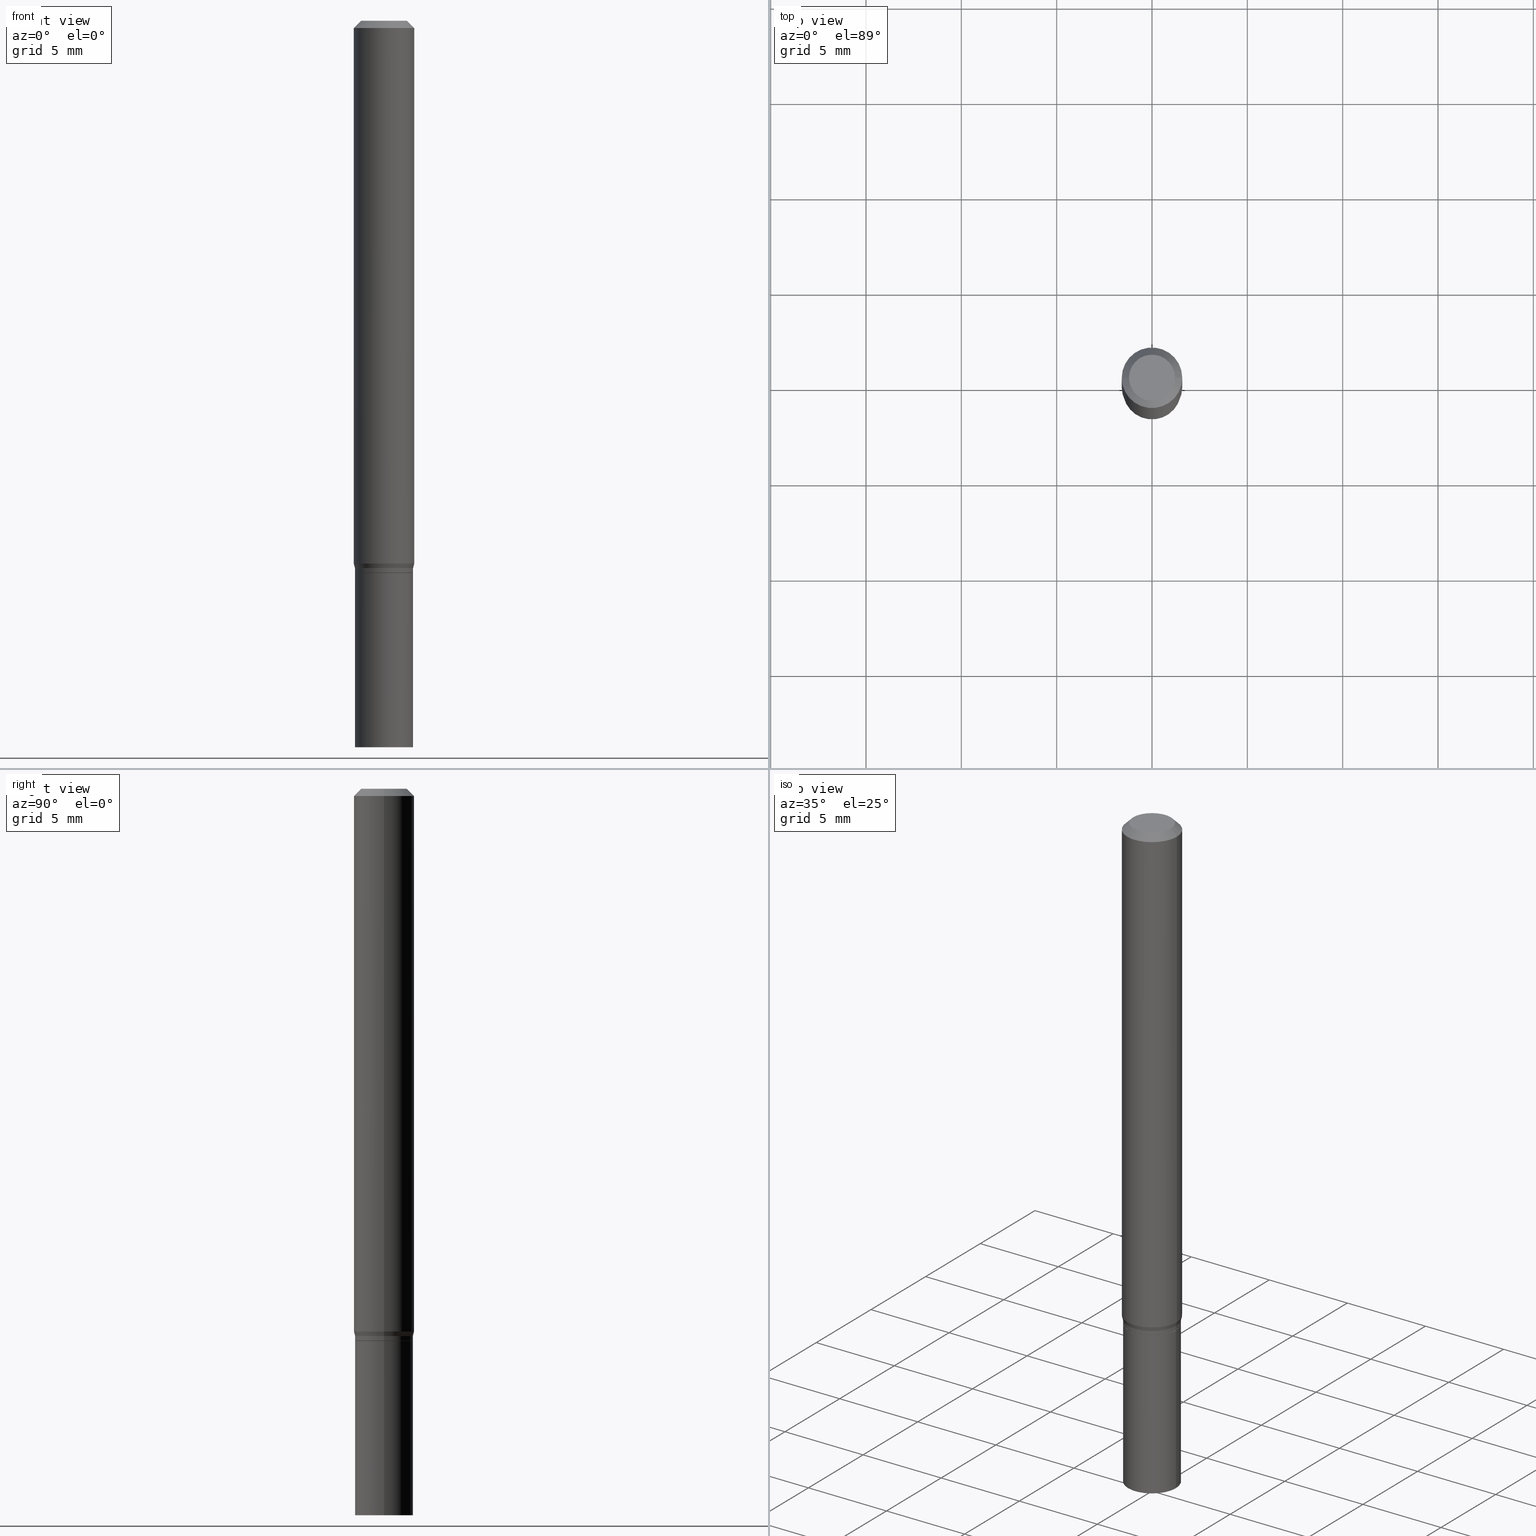
[diagram: canonical four-view strip — front | top / right | iso, engineering-drawing reading convention]
A machine part, canonical four-view strip (front | top / right | iso — engineering-drawing reading convention). The complete STEP part file that produces these views, byte-faithful:
ISO-10303-21;
HEADER;
FILE_DESCRIPTION (( 'STEP AP203' ),
    '1' );
FILE_NAME ('02469.STEP',
    '2024-03-18T20:47:08',
    ( '' ),
    ( '' ),
    'SwSTEP 2.0',
    'SolidWorks 2023',
    '' );
FILE_SCHEMA (( 'CONFIG_CONTROL_DESIGN' ));
ENDSEC;

DATA;
#1 = LINE ( 'NONE', #50, #366 ) ;
#2 = AXIS2_PLACEMENT_3D ( 'NONE', #41, #395, #220 ) ;
#3 = EDGE_CURVE ( 'NONE', #417, #411, #206, .T. ) ;
#4 = LOCAL_TIME ( 16, 47, 8.000000000000000000, #424 ) ;
#5 = DIRECTION ( 'NONE',  ( 2.445468806185136597E-29, -3.491481338843145583E-15, -1.000000000000000000 ) ) ;
#6 = PLANE ( 'NONE',  #10 ) ;
#7 = EDGE_CURVE ( 'NONE', #270, #13, #360, .T. ) ;
#8 = CARTESIAN_POINT ( 'NONE',  ( 0.05999999999999999778, -4.189777606611760421E-16, 2.925706065477561756E-30 ) ) ;
#9 = CARTESIAN_POINT ( 'NONE',  ( 2.763379750989204444E-29, -3.945373912892755049E-15, -1.130000000000000115 ) ) ;
#10 = AXIS2_PLACEMENT_3D ( 'NONE', #48, #357, #363 ) ;
#11 = CALENDAR_DATE ( 2024, 18, 3 ) ;
#12 = CARTESIAN_POINT ( 'NONE',  ( 0.06000000000000020595, -4.364351673553932471E-15, -1.130000000000000115 ) ) ;
#13 = VERTEX_POINT ( 'NONE', #383 ) ;
#14 = EDGE_CURVE ( 'NONE', #411, #417, #350, .T. ) ;
#15 = DIRECTION ( 'NONE',  ( -2.445468806185136597E-29, 3.491481338843145583E-15, 1.000000000000000000 ) ) ;
#16 = EDGE_LOOP ( 'NONE', ( #408, #374 ) ) ;
#17 = COORDINATED_UNIVERSAL_TIME_OFFSET ( 5, 0, .BEHIND. ) ;
#18 = PRODUCT ( '02469', '02469', '', ( #464 ) ) ;
#19 = EDGE_CURVE ( 'NONE', #270, #121, #167, .T. ) ;
#20 = VERTEX_POINT ( 'NONE', #271 ) ;
#21 = EDGE_CURVE ( 'NONE', #164, #240, #238, .T. ) ;
#22 = ORIENTED_EDGE ( 'NONE', *, *, #209, .T. ) ;
#23 = CIRCLE ( 'NONE', #175, 0.06000000000000020595 ) ;
#24 = CIRCLE ( 'NONE', #76, 0.06250000000000000000 ) ;
#25 = PLANE ( 'NONE',  #436 ) ;
#26 = ORIENTED_EDGE ( 'NONE', *, *, #106, .F. ) ;
#27 = EDGE_LOOP ( 'NONE', ( #123, #154, #340, #98 ) ) ;
#28 = LINE ( 'NONE', #319, #373 ) ;
#29 = ORIENTED_EDGE ( 'NONE', *, *, #100, .F. ) ;
#30 = CARTESIAN_POINT ( 'NONE',  ( 0.000000000000000000, 0.000000000000000000, 0.000000000000000000 ) ) ;
#31 = ORIENTED_EDGE ( 'NONE', *, *, #380, .T. ) ;
#32 = COORDINATED_UNIVERSAL_TIME_OFFSET ( 5, 0, .BEHIND. ) ;
#33 = ORIENTED_EDGE ( 'NONE', *, *, #3, .T. ) ;
#34 = EDGE_LOOP ( 'NONE', ( #447, #172, #197, #295 ) ) ;
#35 = FACE_OUTER_BOUND ( 'NONE', #163, .T. ) ;
#36 = DIRECTION ( 'NONE',  ( 1.000000000000000000, -6.982962677686268288E-15, 0.000000000000000000 ) ) ;
#37 = EDGE_CURVE ( 'NONE', #229, #309, #459, .T. ) ;
#38 = DIRECTION ( 'NONE',  ( 1.000000000000000000, -6.982962677686259611E-15, 0.000000000000000000 ) ) ;
#39 = APPLICATION_CONTEXT ( 'configuration controlled 3d designs of mechanical parts and assemblies' ) ;
#40 = DIRECTION ( 'NONE',  ( 1.000000000000000000, -6.982962677686268288E-15, 0.000000000000000000 ) ) ;
#41 = CARTESIAN_POINT ( 'NONE',  ( 0.000000000000000000, 0.000000000000000000, 0.000000000000000000 ) ) ;
#42 = CARTESIAN_POINT ( 'NONE',  ( -0.06250000000000000000, -3.468708738667092242E-15, -1.120669872981078674 ) ) ;
#43 = VECTOR ( 'NONE', #208, 39.37007874015748143 ) ;
#44 = ADVANCED_FACE ( 'NONE', ( #192 ), #428, .T. ) ;
#45 = FACE_OUTER_BOUND ( 'NONE', #406, .T. ) ;
#46 = CYLINDRICAL_SURFACE ( 'NONE', #2, 0.06000000000000012962 ) ;
#47 = DIRECTION ( 'NONE',  ( 1.000000000000000000, -6.982962677686267499E-15, 4.852736867747366768E-29 ) ) ;
#48 = CARTESIAN_POINT ( 'NONE',  ( 3.576687321579069994E-29, -5.368277968210015545E-15, -1.500000000000000222 ) ) ;
#49 = VECTOR ( 'NONE', #442, 39.37007874015748143 ) ;
#50 = CARTESIAN_POINT ( 'NONE',  ( -0.05999999999999999778, 4.263256414560600957E-16, -2.951361054152943413E-30 ) ) ;
#51 = EDGE_CURVE ( 'NONE', #13, #270, #311, .T. ) ;
#52 = ORIENTED_EDGE ( 'NONE', *, *, #160, .F. ) ;
#53 = CARTESIAN_POINT ( 'NONE',  ( 2.787834439051055989E-29, -3.980288726281186698E-15, -1.140000000000000124 ) ) ;
#54 = EDGE_CURVE ( 'NONE', #265, #241, #23, .T. ) ;
#55 = CLOSED_SHELL ( 'NONE', ( #314, #334, #187, #181, #261, #413, #44, #434, #171, #219, #96, #318 ) ) ;
#56 = ORIENTED_EDGE ( 'NONE', *, *, #347, .T. ) ;
#57 = COORDINATED_UNIVERSAL_TIME_OFFSET ( 5, 0, .BEHIND. ) ;
#58 = ORIENTED_EDGE ( 'NONE', *, *, #119, .T. ) ;
#59 = APPROVAL_DATE_TIME ( #277, #420 ) ;
#60 = ORIENTED_EDGE ( 'NONE', *, *, #253, .T. ) ;
#61 = APPROVAL_DATE_TIME ( #376, #300 ) ;
#62 = DIRECTION ( 'NONE',  ( -2.445468806185136597E-29, 3.491481338843145583E-15, 1.000000000000000000 ) ) ;
#63 = UNCERTAINTY_MEASURE_WITH_UNIT (LENGTH_MEASURE( 1.000000000000000082E-05 ), #278, 'distance_accuracy_value', 'NONE');
#64 = CYLINDRICAL_SURFACE ( 'NONE', #94, 0.06250000000000000000 ) ;
#65 = AXIS2_PLACEMENT_3D ( 'NONE', #293, #152, #286 ) ;
#66 = CARTESIAN_POINT ( 'NONE',  ( 0.06250000000000000000, -4.364351673553916694E-16, 3.047610484872459871E-30 ) ) ;
#67 = CARTESIAN_POINT ( 'NONE',  ( 0.06000000000000012962, -4.189777606611768802E-16, 2.925706065477567711E-30 ) ) ;
#68 = CC_DESIGN_PERSON_AND_ORGANIZATION_ASSIGNMENT ( #91, #427, ( #195 ) ) ;
#69 = CARTESIAN_POINT ( 'NONE',  ( 3.668203209277704895E-29, -5.237222008264718177E-15, -1.500000000000000222 ) ) ;
#70 = DIRECTION ( 'NONE',  ( 1.000000000000000000, -6.982962677686266711E-15, 4.876176775795935793E-29 ) ) ;
#71 = CARTESIAN_POINT ( 'NONE',  ( -0.05999999999999999778, -4.182429725816891947E-15, -1.500000000000000222 ) ) ;
#72 = CARTESIAN_POINT ( 'NONE',  ( 0.04749999999999999362, -4.035134999187581581E-16, -1.989643822619502098E-16 ) ) ;
#73 = APPROVAL ( #299, 'UNSPECIFIED' ) ;
#74 = APPROVAL_DATE_TIME ( #77, #73 ) ;
#75 = ORIENTED_EDGE ( 'NONE', *, *, #199, .T. ) ;
#76 = AXIS2_PLACEMENT_3D ( 'NONE', #392, #323, #212 ) ;
#77 = DATE_AND_TIME ( #104, #87 ) ;
#78 =( NAMED_UNIT ( * ) SI_UNIT ( $, .STERADIAN. ) SOLID_ANGLE_UNIT ( ) );
#79 = EDGE_CURVE ( 'NONE', #417, #267, #1, .T. ) ;
#80 = LINE ( 'NONE', #85, #409 ) ;
#81 = AXIS2_PLACEMENT_3D ( 'NONE', #257, #287, #224 ) ;
#82 = CC_DESIGN_APPROVAL ( #420, ( #351 ) ) ;
#83 = EDGE_CURVE ( 'NONE', #229, #240, #441, .T. ) ;
#84 = DATE_TIME_ROLE ( 'creation_date' ) ;
#85 = CARTESIAN_POINT ( 'NONE',  ( -0.06000000000000012962, 4.263256414560610325E-16, -2.951361054152949719E-30 ) ) ;
#86 = FACE_OUTER_BOUND ( 'NONE', #16, .T. ) ;
#87 = LOCAL_TIME ( 16, 47, 8.000000000000000000, #57 ) ;
#88 = FACE_OUTER_BOUND ( 'NONE', #416, .T. ) ;
#89 = ADVANCED_FACE ( 'NONE', ( #88 ), #412, .F. ) ;
#90 = EDGE_LOOP ( 'NONE', ( #348, #33, #456, #232 ) ) ;
#91 = PERSON_AND_ORGANIZATION ( #377, #327 ) ;
#92 = EDGE_LOOP ( 'NONE', ( #375, #268, #308, #26 ) ) ;
#93 = AXIS2_PLACEMENT_3D ( 'NONE', #423, #109, #107 ) ;
#94 = AXIS2_PLACEMENT_3D ( 'NONE', #30, #139, #70 ) ;
#95 = EDGE_LOOP ( 'NONE', ( #155, #177, #56, #173 ) ) ;
#96 = ADVANCED_FACE ( 'NONE', ( #445 ), #150, .T. ) ;
#97 = PERSON_AND_ORGANIZATION ( #377, #327 ) ;
#98 = ORIENTED_EDGE ( 'NONE', *, *, #21, .F. ) ;
#99 = ORIENTED_EDGE ( 'NONE', *, *, #19, .T. ) ;
#100 = EDGE_CURVE ( 'NONE', #241, #164, #368, .T. ) ;
#101 = CARTESIAN_POINT ( 'NONE',  ( 3.316907271900976096E-16, 0.04749999999999999362, -2.653275547260257586E-16 ) ) ;
#102 = CIRCLE ( 'NONE', #81, 0.06000000000000006023 ) ;
#103 = AXIS2_PLACEMENT_3D ( 'NONE', #191, #432, #183 ) ;
#104 = CALENDAR_DATE ( 2024, 18, 3 ) ;
#105 = ORIENTED_EDGE ( 'NONE', *, *, #21, .T. ) ;
#106 = EDGE_CURVE ( 'NONE', #346, #164, #297, .T. ) ;
#107 = DIRECTION ( 'NONE',  ( 1.000000000000000000, -6.982962677686268288E-15, 0.000000000000000000 ) ) ;
#108 = ORIENTED_EDGE ( 'NONE', *, *, #106, .T. ) ;
#109 = DIRECTION ( 'NONE',  ( -2.445468806185136597E-29, 3.491481338843145583E-15, 1.000000000000000000 ) ) ;
#110 = CARTESIAN_POINT ( 'NONE',  ( 0.000000000000000000, 0.000000000000000000, 0.000000000000000000 ) ) ;
#111 = CIRCLE ( 'NONE', #166, 0.06000000000000020595 ) ;
#112 = APPROVAL_PERSON_ORGANIZATION ( #367, #300, #312 ) ;
#113 = DIRECTION ( 'NONE',  ( 1.000000000000000000, -6.982962677686265922E-15, 4.876176775795935793E-29 ) ) ;
#114 = CARTESIAN_POINT ( 'NONE',  ( 0.06000000000000006023, -4.397520746272941039E-15, -1.139500000000000179 ) ) ;
#115 = CARTESIAN_POINT ( 'NONE',  ( -0.06250000000000000000, -1.538495874449838155E-15, -0.01499999999999999944 ) ) ;
#116 = AXIS2_PLACEMENT_3D ( 'NONE', #262, #15, #404 ) ;
#117 = APPROVAL_PERSON_ORGANIZATION ( #161, #73, #125 ) ;
#118 = CARTESIAN_POINT ( 'NONE',  ( 2.787834439051055989E-29, -3.980288726281186698E-15, -1.140000000000000124 ) ) ;
#119 = EDGE_CURVE ( 'NONE', #265, #346, #354, .T. ) ;
#120 = DIRECTION ( 'NONE',  ( 0.7071067811865522357, -7.319954787623271823E-15, -0.7071067811865427988 ) ) ;
#121 = VERTEX_POINT ( 'NONE', #382 ) ;
#122 = CIRCLE ( 'NONE', #93, 0.05999999999999999778 ) ;
#123 = ORIENTED_EDGE ( 'NONE', *, *, #393, .T. ) ;
#124 = CALENDAR_DATE ( 2024, 18, 3 ) ;
#125 = APPROVAL_ROLE ( '' ) ;
#126 = EDGE_CURVE ( 'NONE', #260, #241, #384, .T. ) ;
#127 = CIRCLE ( 'NONE', #403, 0.06250000000000000000 ) ;
#128 = ORIENTED_EDGE ( 'NONE', *, *, #328, .T. ) ;
#129 = CC_DESIGN_DATE_AND_TIME_ASSIGNMENT ( #298, #345, ( #351 ) ) ;
#130 = DIRECTION ( 'NONE',  ( -0.7071067811865656694, 7.493145998870420424E-15, 0.7071067811865294761 ) ) ;
#131 = DIRECTION ( 'NONE',  ( -2.445468806185136877E-29, 3.491481338843145188E-15, 1.000000000000000000 ) ) ;
#132 = APPLICATION_PROTOCOL_DEFINITION ( 'international standard', 'config_control_design', 1994, #39 ) ;
#133 = CARTESIAN_POINT ( 'NONE',  ( -0.05949999999999999734, -3.557515798503927106E-15, -1.140000000000000124 ) ) ;
#134 = AXIS2_PLACEMENT_3D ( 'NONE', #378, #62, #204 ) ;
#135 = DIRECTION ( 'NONE',  ( -2.445468806185136597E-29, 3.491481338843145583E-15, 1.000000000000000000 ) ) ;
#136 = CARTESIAN_POINT ( 'NONE',  ( 2.787834439051055989E-29, -3.980288726281186698E-15, -1.140000000000000124 ) ) ;
#137 = PERSON_AND_ORGANIZATION ( #377, #327 ) ;
#138 = FACE_OUTER_BOUND ( 'NONE', #34, .T. ) ;
#139 = DIRECTION ( 'NONE',  ( -2.445468806185136597E-29, 3.491481338843145583E-15, 1.000000000000000000 ) ) ;
#140 = APPROVAL_ROLE ( '' ) ;
#141 = CYLINDRICAL_SURFACE ( 'NONE', #313, 0.05999999999999999778 ) ;
#142 = PLANE ( 'NONE',  #444 ) ;
#143 = DIRECTION ( 'NONE',  ( -2.445468806185136597E-29, 3.491481338843145583E-15, 1.000000000000000000 ) ) ;
#144 = AXIS2_PLACEMENT_3D ( 'NONE', #256, #275, #422 ) ;
#145 = CARTESIAN_POINT ( 'NONE',  ( 2.763379750989204444E-29, -3.945373912892755049E-15, -1.130000000000000115 ) ) ;
#146 = DIRECTION ( 'NONE',  ( -2.445468806185136597E-29, 3.491481338843145583E-15, 1.000000000000000000 ) ) ;
#147 = FACE_OUTER_BOUND ( 'NONE', #92, .T. ) ;
#148 = DIRECTION ( 'NONE',  ( 1.000000000000000000, -6.982962677686268288E-15, 0.000000000000000000 ) ) ;
#149 = DIRECTION ( 'NONE',  ( 1.000000000000000000, -6.982962677686265922E-15, 4.876176775795935793E-29 ) ) ;
#150 = CONICAL_SURFACE ( 'NONE', #290, 0.05949999999999999734, 0.7853981633974739252 ) ;
#151 = DIRECTION ( 'NONE',  ( 1.000000000000000000, -6.982962677686259611E-15, 0.000000000000000000 ) ) ;
#152 = DIRECTION ( 'NONE',  ( -2.445468806185136597E-29, 3.491481338843145583E-15, 1.000000000000000000 ) ) ;
#153 = DIRECTION ( 'NONE',  ( 0.2588190451025210170, 1.565188264969624531E-15, 0.9659258262890682012 ) ) ;
#154 = ORIENTED_EDGE ( 'NONE', *, *, #160, .T. ) ;
#155 = ORIENTED_EDGE ( 'NONE', *, *, #37, .F. ) ;
#156 = VECTOR ( 'NONE', #130, 39.37007874015748143 ) ;
#157 = CIRCLE ( 'NONE', #144, 0.04749999999999999362 ) ;
#158 = ORIENTED_EDGE ( 'NONE', *, *, #37, .T. ) ;
#159 = PERSON_AND_ORGANIZATION_ROLE ( 'design_supplier' ) ;
#160 = EDGE_CURVE ( 'NONE', #346, #335, #28, .T. ) ;
#161 = PERSON_AND_ORGANIZATION ( #377, #327 ) ;
#162 = ORIENTED_EDGE ( 'NONE', *, *, #380, .F. ) ;
#163 = EDGE_LOOP ( 'NONE', ( #405, #370, #333, #452 ) ) ;
#164 = VERTEX_POINT ( 'NONE', #170 ) ;
#165 = CC_DESIGN_PERSON_AND_ORGANIZATION_ASSIGNMENT ( #352, #302, ( #351 ) ) ;
#166 = AXIS2_PLACEMENT_3D ( 'NONE', #9, #397, #148 ) ;
#167 = LINE ( 'NONE', #133, #156 ) ;
#168 = ADVANCED_FACE ( 'NONE', ( #179 ), #338, .T. ) ;
#169 = ORIENTED_EDGE ( 'NONE', *, *, #19, .F. ) ;
#170 = CARTESIAN_POINT ( 'NONE',  ( 0.06250000000000000000, -4.349233115872546527E-15, -1.120669872981078674 ) ) ;
#171 = ADVANCED_FACE ( 'NONE', ( #460 ), #25, .F. ) ;
#172 = ORIENTED_EDGE ( 'NONE', *, *, #385, .F. ) ;
#173 = ORIENTED_EDGE ( 'NONE', *, *, #242, .F. ) ;
#174 = DIRECTION ( 'NONE',  ( -1.000000000000000000, 6.982962677686266711E-15, 0.000000000000000000 ) ) ;
#175 = AXIS2_PLACEMENT_3D ( 'NONE', #185, #146, #320 ) ;
#176 = LOCAL_TIME ( 16, 47, 8.000000000000000000, #32 ) ;
#177 = ORIENTED_EDGE ( 'NONE', *, *, #83, .T. ) ;
#178 = CARTESIAN_POINT ( 'NONE',  ( 0.05949999999999999734, -4.395775005603518747E-15, -1.140000000000000124 ) ) ;
#179 = FACE_OUTER_BOUND ( 'NONE', #90, .T. ) ;
#180 = CALENDAR_DATE ( 2024, 18, 3 ) ;
#181 = ADVANCED_FACE ( 'NONE', ( #213 ), #64, .T. ) ;
#182 = ORIENTED_EDGE ( 'NONE', *, *, #51, .T. ) ;
#183 = DIRECTION ( 'NONE',  ( 1.000000000000000000, -6.982962677686270655E-15, 0.000000000000000000 ) ) ;
#184 = CARTESIAN_POINT ( 'NONE',  ( -0.06250000000000000000, 3.840629472727444916E-16, -0.01499999999999999944 ) ) ;
#185 = CARTESIAN_POINT ( 'NONE',  ( 2.763379750989204444E-29, -3.945373912892755049E-15, -1.130000000000000115 ) ) ;
#186 = DIRECTION ( 'NONE',  ( -2.445468806185136877E-29, 3.491481338843145188E-15, 1.000000000000000000 ) ) ;
#187 = ADVANCED_FACE ( 'NONE', ( #317 ), #272, .T. ) ;
#188 = AXIS2_PLACEMENT_3D ( 'NONE', #236, #259, #401 ) ;
#189 = PERSON_AND_ORGANIZATION ( #377, #327 ) ;
#190 = DIRECTION ( 'NONE',  ( -2.445468806185136597E-29, 3.491481338843145583E-15, 1.000000000000000000 ) ) ;
#191 = CARTESIAN_POINT ( 'NONE',  ( 2.740563216406686834E-29, -3.912797948517154069E-15, -1.120669872981078674 ) ) ;
#192 = FACE_OUTER_BOUND ( 'NONE', #402, .T. ) ;
#193 = VECTOR ( 'NONE', #120, 39.37007874015748143 ) ;
#194 = CARTESIAN_POINT ( 'NONE',  ( -0.04749999999999999362, 3.578768372314206562E-16, -1.989643822619551895E-16 ) ) ;
#195 = PRODUCT_DEFINITION_FORMATION_WITH_SPECIFIED_SOURCE ( 'ANY', '', #18, .NOT_KNOWN. ) ;
#196 = DIRECTION ( 'NONE',  ( 1.000000000000000000, -6.982962677686259611E-15, 0.000000000000000000 ) ) ;
#197 = ORIENTED_EDGE ( 'NONE', *, *, #242, .T. ) ;
#198 = EDGE_LOOP ( 'NONE', ( #128, #58, #301, #29 ) ) ;
#199 = EDGE_CURVE ( 'NONE', #267, #20, #288, .T. ) ;
#200 = ORIENTED_EDGE ( 'NONE', *, *, #7, .T. ) ;
#201 = AXIS2_PLACEMENT_3D ( 'NONE', #69, #336, #458 ) ;
#202 = ORIENTED_EDGE ( 'NONE', *, *, #379, .T. ) ;
#203 = CALENDAR_DATE ( 2024, 18, 3 ) ;
#204 = DIRECTION ( 'NONE',  ( 1.000000000000000000, -6.982962677686259611E-15, 0.000000000000000000 ) ) ;
#205 = DIRECTION ( 'NONE',  ( -0.7071067811865522357, 2.468850131082306364E-15, -0.7071067811865427988 ) ) ;
#206 = CIRCLE ( 'NONE', #398, 0.05999999999999999778 ) ;
#207 = CC_DESIGN_APPROVAL ( #300, ( #195 ) ) ;
#208 = DIRECTION ( 'NONE',  ( -2.445468806185136877E-29, 3.491481338843145188E-15, 1.000000000000000000 ) ) ;
#209 = EDGE_CURVE ( 'NONE', #20, #267, #122, .T. ) ;
#210 = EDGE_LOOP ( 'NONE', ( #31, #60, #315, #233 ) ) ;
#211 = DIRECTION ( 'NONE',  ( 2.438088387897960049E-29, -3.491481338843145188E-15, -1.000000000000000000 ) ) ;
#212 = DIRECTION ( 'NONE',  ( 1.000000000000000000, -6.982962677686266711E-15, 0.000000000000000000 ) ) ;
#213 = FACE_OUTER_BOUND ( 'NONE', #27, .T. ) ;
#214 = VECTOR ( 'NONE', #343, 39.37007874015748143 ) ;
#215 = APPLICATION_PROTOCOL_DEFINITION ( 'international standard', 'config_control_design', 1994, #440 ) ;
#216 = DIRECTION ( 'NONE',  ( -2.445468806185136597E-29, 3.491481338843145583E-15, 1.000000000000000000 ) ) ;
#217 = CARTESIAN_POINT ( 'NONE',  ( 0.000000000000000000, 0.000000000000000000, 0.000000000000000000 ) ) ;
#218 = CARTESIAN_POINT ( 'NONE',  ( -0.05999999999999999778, -4.182429725816891947E-15, -1.140000000000000124 ) ) ;
#219 = ADVANCED_FACE ( 'NONE', ( #244 ), #142, .F. ) ;
#220 = DIRECTION ( 'NONE',  ( 1.000000000000000000, -6.982962677686265922E-15, 4.876176775795935793E-29 ) ) ;
#221 = VECTOR ( 'NONE', #205, 39.37007874015748143 ) ;
#222 = CONICAL_SURFACE ( 'NONE', #234, 0.06000000000000020595, 0.2617993877991496854 ) ;
#223 = DIRECTION ( 'NONE',  ( 1.000000000000000000, -6.982962677686267499E-15, 4.876176775795936353E-29 ) ) ;
#224 = DIRECTION ( 'NONE',  ( 1.000000000000000000, -6.982962677686269077E-15, 0.000000000000000000 ) ) ;
#225 = CARTESIAN_POINT ( 'NONE',  ( -0.06000000000000020595, -3.493878505051892611E-15, -1.130000000000000115 ) ) ;
#226 = AXIS2_PLACEMENT_3D ( 'NONE', #118, #439, #151 ) ;
#227 = ORIENTED_EDGE ( 'NONE', *, *, #51, .F. ) ;
#228 = ORIENTED_EDGE ( 'NONE', *, *, #126, .T. ) ;
#229 = VERTEX_POINT ( 'NONE', #72 ) ;
#230 = DIRECTION ( 'NONE',  ( -2.445468806185136597E-29, 3.491481338843145583E-15, 1.000000000000000000 ) ) ;
#231 = ORIENTED_EDGE ( 'NONE', *, *, #7, .F. ) ;
#232 = ORIENTED_EDGE ( 'NONE', *, *, #199, .F. ) ;
#233 = ORIENTED_EDGE ( 'NONE', *, *, #126, .F. ) ;
#234 = AXIS2_PLACEMENT_3D ( 'NONE', #431, #386, #40 ) ;
#235 = ORIENTED_EDGE ( 'NONE', *, *, #391, .F. ) ;
#236 = CARTESIAN_POINT ( 'NONE',  ( 4.189777606612038494E-16, 0.05999999999999602179, -1.140000000000000346 ) ) ;
#237 = DIRECTION ( 'NONE',  ( -2.445468806185136597E-29, 3.491481338843145583E-15, 1.000000000000000000 ) ) ;
#238 = LINE ( 'NONE', #66, #43 ) ;
#239 = ORIENTED_EDGE ( 'NONE', *, *, #419, .F. ) ;
#240 = VERTEX_POINT ( 'NONE', #276 ) ;
#241 = VERTEX_POINT ( 'NONE', #246 ) ;
#242 = EDGE_CURVE ( 'NONE', #309, #335, #388, .T. ) ;
#243 = LINE ( 'NONE', #178, #248 ) ;
#244 = FACE_OUTER_BOUND ( 'NONE', #329, .T. ) ;
#245 = EDGE_LOOP ( 'NONE', ( #303, #158 ) ) ;
#246 = CARTESIAN_POINT ( 'NONE',  ( 0.06000000000000020595, -4.364351673553932471E-15, -1.130000000000000115 ) ) ;
#247 = AXIS2_PLACEMENT_3D ( 'NONE', #136, #274, #36 ) ;
#248 = VECTOR ( 'NONE', #251, 39.37007874015748143 ) ;
#249 = PERSON_AND_ORGANIZATION ( #377, #327 ) ;
#250 =( NAMED_UNIT ( * ) PLANE_ANGLE_UNIT ( ) SI_UNIT ( $, .RADIAN. ) );
#251 = DIRECTION ( 'NONE',  ( 0.7071067811865656694, -2.468850131082446387E-15, 0.7071067811865294761 ) ) ;
#252 = FACE_OUTER_BOUND ( 'NONE', #210, .T. ) ;
#253 = EDGE_CURVE ( 'NONE', #121, #265, #80, .T. ) ;
#254 = DATE_AND_TIME ( #11, #421 ) ;
#255 = AXIS2_PLACEMENT_3D ( 'NONE', #110, #216, #355 ) ;
#256 = CARTESIAN_POINT ( 'NONE',  ( 4.865611903635008365E-45, -6.946804277620623666E-31, -1.989643822619527736E-16 ) ) ;
#257 = CARTESIAN_POINT ( 'NONE',  ( 2.786611704647963188E-29, -3.978542985611764405E-15, -1.139500000000000179 ) ) ;
#258 = EDGE_CURVE ( 'NONE', #411, #20, #284, .T. ) ;
#259 = DIRECTION ( 'NONE',  ( 2.438088387897960049E-29, -3.491481338843145188E-15, -1.000000000000000000 ) ) ;
#260 = VERTEX_POINT ( 'NONE', #114 ) ;
#261 = ADVANCED_FACE ( 'NONE', ( #292 ), #305, .T. ) ;
#262 = CARTESIAN_POINT ( 'NONE',  ( 2.740563216406686834E-29, -3.912797948517154069E-15, -1.120669872981078674 ) ) ;
#263 = PRODUCT_DEFINITION ( 'UNKNOWN', '', #195, #316 ) ;
#264 = CIRCLE ( 'NONE', #65, 0.06000000000000006023 ) ;
#265 = VERTEX_POINT ( 'NONE', #225 ) ;
#266 = APPROVAL_PERSON_ORGANIZATION ( #137, #420, #140 ) ;
#267 = VERTEX_POINT ( 'NONE', #218 ) ;
#268 = ORIENTED_EDGE ( 'NONE', *, *, #54, .T. ) ;
#269 = AXIS2_PLACEMENT_3D ( 'NONE', #145, #362, #435 ) ;
#270 = VERTEX_POINT ( 'NONE', #365 ) ;
#271 = CARTESIAN_POINT ( 'NONE',  ( 0.05999999999999999778, -4.399266486942362543E-15, -1.140000000000000124 ) ) ;
#272 = CONICAL_SURFACE ( 'NONE', #337, 0.06250000000000000000, 0.7853981633974549403 ) ;
#273 = AXIS2_PLACEMENT_3D ( 'NONE', #217, #356, #358 ) ;
#274 = DIRECTION ( 'NONE',  ( -2.445468806185136597E-29, 3.491481338843145583E-15, 1.000000000000000000 ) ) ;
#275 = DIRECTION ( 'NONE',  ( -2.445468806185136597E-29, 3.491481338843145583E-15, 1.000000000000000000 ) ) ;
#276 = CARTESIAN_POINT ( 'NONE',  ( 0.06250000000000000000, -4.888073874380388472E-16, -0.01499999999999999944 ) ) ;
#277 = DATE_AND_TIME ( #124, #176 ) ;
#278 =( CONVERSION_BASED_UNIT ( 'INCH', #361 ) LENGTH_UNIT ( ) NAMED_UNIT ( #304 ) );
#279 = CARTESIAN_POINT ( 'NONE',  ( 2.787834439051055989E-29, -3.980288726281186698E-15, -1.140000000000000124 ) ) ;
#280 = MANIFOLD_SOLID_BREP ( 'Body-Move/Copy2[1]', #322 ) ;
#281 = AXIS2_PLACEMENT_3D ( 'NONE', #342, #135, #47 ) ;
#282 =( GEOMETRIC_REPRESENTATION_CONTEXT ( 3 ) GLOBAL_UNCERTAINTY_ASSIGNED_CONTEXT ( ( #63 ) ) GLOBAL_UNIT_ASSIGNED_CONTEXT ( ( #278, #250, #78 ) ) REPRESENTATION_CONTEXT ( 'NONE', 'WORKASPACE' ) );
#283 = CARTESIAN_POINT ( 'NONE',  ( 2.787834439051055989E-29, -3.980288726281186698E-15, -1.140000000000000124 ) ) ;
#284 = LINE ( 'NONE', #8, #49 ) ;
#285 = CARTESIAN_POINT ( 'NONE',  ( 3.668203209277705088E-31, -5.237222008264718399E-17, -0.01499999999999999944 ) ) ;
#286 = DIRECTION ( 'NONE',  ( 1.000000000000000000, -6.982962677686269077E-15, 0.000000000000000000 ) ) ;
#287 = DIRECTION ( 'NONE',  ( -2.445468806185136597E-29, 3.491481338843145583E-15, 1.000000000000000000 ) ) ;
#288 = CIRCLE ( 'NONE', #247, 0.05999999999999999778 ) ;
#289 = COORDINATED_UNIVERSAL_TIME_OFFSET ( 5, 0, .BEHIND. ) ;
#290 = AXIS2_PLACEMENT_3D ( 'NONE', #53, #230, #196 ) ;
#291 = ADVANCED_FACE ( 'NONE', ( #86 ), #6, .F. ) ;
#292 = FACE_OUTER_BOUND ( 'NONE', #198, .T. ) ;
#293 = CARTESIAN_POINT ( 'NONE',  ( 2.786611704647963188E-29, -3.978542985611764405E-15, -1.139500000000000179 ) ) ;
#294 = CC_DESIGN_PERSON_AND_ORGANIZATION_ASSIGNMENT ( #189, #341, ( #18 ) ) ;
#295 = ORIENTED_EDGE ( 'NONE', *, *, #419, .T. ) ;
#296 = DIRECTION ( 'NONE',  ( -2.445468806185136877E-29, 3.491481338843145188E-15, 1.000000000000000000 ) ) ;
#297 = CIRCLE ( 'NONE', #116, 0.06250000000000000000 ) ;
#298 = DATE_AND_TIME ( #203, #4 ) ;
#299 = APPROVAL_STATUS ( 'not_yet_approved' ) ;
#300 = APPROVAL ( #414, 'UNSPECIFIED' ) ;
#301 = ORIENTED_EDGE ( 'NONE', *, *, #393, .F. ) ;
#302 = PERSON_AND_ORGANIZATION_ROLE ( 'classification_officer' ) ;
#303 = ORIENTED_EDGE ( 'NONE', *, *, #385, .T. ) ;
#304 = DIMENSIONAL_EXPONENTS ( 1.000000000000000000, 0.000000000000000000, 0.000000000000000000, 0.000000000000000000, 0.000000000000000000, 0.000000000000000000, 0.000000000000000000 ) ;
#305 = CONICAL_SURFACE ( 'NONE', #269, 0.06000000000000020595, 0.2617993877991496854 ) ;
#306 = CARTESIAN_POINT ( 'NONE',  ( -0.06000000000000020595, -3.519048271436693375E-15, -1.130000000000000115 ) ) ;
#307 = CC_DESIGN_PERSON_AND_ORGANIZATION_ASSIGNMENT ( #249, #433, ( #263 ) ) ;
#308 = ORIENTED_EDGE ( 'NONE', *, *, #100, .T. ) ;
#309 = VERTEX_POINT ( 'NONE', #194 ) ;
#310 = DIRECTION ( 'NONE',  ( 1.000000000000000000, -6.982962677686268288E-15, 0.000000000000000000 ) ) ;
#311 = CIRCLE ( 'NONE', #381, 0.05949999999999999734 ) ;
#312 = APPROVAL_ROLE ( '' ) ;
#313 = AXIS2_PLACEMENT_3D ( 'NONE', #396, #425, #223 ) ;
#314 = ADVANCED_FACE ( 'NONE', ( #252 ), #46, .T. ) ;
#315 = ORIENTED_EDGE ( 'NONE', *, *, #328, .F. ) ;
#316 = DESIGN_CONTEXT ( 'detailed design', #39, 'design' ) ;
#317 = FACE_OUTER_BOUND ( 'NONE', #95, .T. ) ;
#318 = ADVANCED_FACE ( 'NONE', ( #45 ), #325, .T. ) ;
#319 = CARTESIAN_POINT ( 'NONE',  ( -0.06250000000000000000, 4.440892098500626162E-16, -3.074334431409316114E-30 ) ) ;
#320 = DIRECTION ( 'NONE',  ( 1.000000000000000000, -6.982962677686268288E-15, 0.000000000000000000 ) ) ;
#321 = DIRECTION ( 'NONE',  ( -2.445468806185136597E-29, 3.491481338843145583E-15, 1.000000000000000000 ) ) ;
#322 = CLOSED_SHELL ( 'NONE', ( #457, #291, #168, #89 ) ) ;
#323 = DIRECTION ( 'NONE',  ( -2.445468806185136597E-29, 3.491481338843145583E-15, 1.000000000000000000 ) ) ;
#324 = DIRECTION ( 'NONE',  ( 1.000000000000000000, -6.982962677686266711E-15, 0.000000000000000000 ) ) ;
#325 = CYLINDRICAL_SURFACE ( 'NONE', #326, 0.06000000000000012962 ) ;
#326 = AXIS2_PLACEMENT_3D ( 'NONE', #399, #321, #149 ) ;
#327 = ORGANIZATION ( 'UNSPECIFIED', 'UNSPECIFIED', '' ) ;
#328 = EDGE_CURVE ( 'NONE', #241, #265, #111, .T. ) ;
#329 = EDGE_LOOP ( 'NONE', ( #227, #231 ) ) ;
#330 = CARTESIAN_POINT ( 'NONE',  ( 0.06250000000000000000, -4.811533449433679005E-16, -0.01499999999999999944 ) ) ;
#331 = EDGE_LOOP ( 'NONE', ( #182, #99, #162, #235 ) ) ;
#332 = VECTOR ( 'NONE', #418, 39.37007874015748143 ) ;
#333 = ORIENTED_EDGE ( 'NONE', *, *, #209, .F. ) ;
#334 = ADVANCED_FACE ( 'NONE', ( #359 ), #389, .T. ) ;
#335 = VERTEX_POINT ( 'NONE', #115 ) ;
#336 = DIRECTION ( 'NONE',  ( -2.445468806185136597E-29, 3.491481338843145583E-15, 1.000000000000000000 ) ) ;
#337 = AXIS2_PLACEMENT_3D ( 'NONE', #463, #344, #174 ) ;
#338 = CYLINDRICAL_SURFACE ( 'NONE', #450, 0.05999999999999999778 ) ;
#339 = LOCAL_TIME ( 16, 47, 8.000000000000000000, #17 ) ;
#340 = ORIENTED_EDGE ( 'NONE', *, *, #347, .F. ) ;
#341 = PERSON_AND_ORGANIZATION_ROLE ( 'design_owner' ) ;
#342 = CARTESIAN_POINT ( 'NONE',  ( 4.865611903635008365E-45, -6.946804277620623666E-31, -1.989643822619527736E-16 ) ) ;
#343 = DIRECTION ( 'NONE',  ( -2.445468806185136877E-29, 3.491481338843145188E-15, 1.000000000000000000 ) ) ;
#344 = DIRECTION ( 'NONE',  ( 2.445468806185136597E-29, -3.491481338843145583E-15, -1.000000000000000000 ) ) ;
#345 = DATE_TIME_ROLE ( 'classification_date' ) ;
#346 = VERTEX_POINT ( 'NONE', #42 ) ;
#347 = EDGE_CURVE ( 'NONE', #240, #335, #127, .T. ) ;
#348 = ORIENTED_EDGE ( 'NONE', *, *, #79, .F. ) ;
#349 =( LENGTH_UNIT ( ) NAMED_UNIT ( * ) SI_UNIT ( $, .METRE. ) );
#350 = CIRCLE ( 'NONE', #201, 0.05999999999999999778 ) ;
#351 = SECURITY_CLASSIFICATION ( '', '', #461 ) ;
#352 = PERSON_AND_ORGANIZATION ( #377, #327 ) ;
#353 = CARTESIAN_POINT ( 'NONE',  ( 0.05999999999999999778, -5.656199768925894810E-15, -1.500000000000000222 ) ) ;
#354 = LINE ( 'NONE', #306, #332 ) ;
#355 = DIRECTION ( 'NONE',  ( 1.000000000000000000, -6.982962677686266711E-15, 4.876176775795935793E-29 ) ) ;
#356 = DIRECTION ( 'NONE',  ( 0.000000000000000000, 0.000000000000000000, 1.000000000000000000 ) ) ;
#357 = DIRECTION ( 'NONE',  ( -2.438088387897960049E-29, 3.491481338843145188E-15, 1.000000000000000000 ) ) ;
#358 = DIRECTION ( 'NONE',  ( 1.000000000000000000, 0.000000000000000000, 0.000000000000000000 ) ) ;
#359 = FACE_OUTER_BOUND ( 'NONE', #331, .T. ) ;
#360 = CIRCLE ( 'NONE', #134, 0.05949999999999999734 ) ;
#361 = LENGTH_MEASURE_WITH_UNIT ( LENGTH_MEASURE( 0.02539999999999999897 ), #349 );
#362 = DIRECTION ( 'NONE',  ( -2.445468806185136597E-29, 3.491481338843145583E-15, 1.000000000000000000 ) ) ;
#363 = DIRECTION ( 'NONE',  ( 1.000000000000000000, -6.982962677686265922E-15, 4.876176775795935793E-29 ) ) ;
#364 = CC_DESIGN_PERSON_AND_ORGANIZATION_ASSIGNMENT ( #97, #159, ( #195 ) ) ;
#365 = CARTESIAN_POINT ( 'NONE',  ( -0.05949999999999999734, -3.554866571329815905E-15, -1.140000000000000124 ) ) ;
#366 = VECTOR ( 'NONE', #296, 39.37007874015748143 ) ;
#367 = PERSON_AND_ORGANIZATION ( #377, #327 ) ;
#368 = LINE ( 'NONE', #12, #430 ) ;
#369 = CC_DESIGN_SECURITY_CLASSIFICATION ( #351, ( #195 ) ) ;
#370 = ORIENTED_EDGE ( 'NONE', *, *, #79, .T. ) ;
#371 = PRODUCT_DEFINITION_SHAPE ( 'NONE', 'NONE',  #263 ) ;
#372 = ORIENTED_EDGE ( 'NONE', *, *, #54, .F. ) ;
#373 = VECTOR ( 'NONE', #131, 39.37007874015748143 ) ;
#374 = ORIENTED_EDGE ( 'NONE', *, *, #3, .F. ) ;
#375 = ORIENTED_EDGE ( 'NONE', *, *, #119, .F. ) ;
#376 = DATE_AND_TIME ( #180, #339 ) ;
#377 = PERSON ( 'UNSPECIFIED', 'UNSPECIFIED', 'UNSPECIFIED', ('UNSPECIFIED'), ('UNSPECIFIED'), ('UNSPECIFIED') ) ;
#378 = CARTESIAN_POINT ( 'NONE',  ( 2.787834439051055989E-29, -3.980288726281186698E-15, -1.140000000000000124 ) ) ;
#379 = EDGE_CURVE ( 'NONE', #121, #260, #264, .T. ) ;
#380 = EDGE_CURVE ( 'NONE', #260, #121, #102, .T. ) ;
#381 = AXIS2_PLACEMENT_3D ( 'NONE', #283, #143, #38 ) ;
#382 = CARTESIAN_POINT ( 'NONE',  ( -0.06000000000000006023, -3.552217344155704310E-15, -1.139500000000000179 ) ) ;
#383 = CARTESIAN_POINT ( 'NONE',  ( 0.05949999999999999734, -4.395775005603518747E-15, -1.140000000000000124 ) ) ;
#384 = LINE ( 'NONE', #67, #214 ) ;
#385 = EDGE_CURVE ( 'NONE', #309, #229, #157, .T. ) ;
#386 = DIRECTION ( 'NONE',  ( -2.445468806185136597E-29, 3.491481338843145583E-15, 1.000000000000000000 ) ) ;
#387 = DIRECTION ( 'NONE',  ( -2.438088387897960049E-29, 3.491481338843145188E-15, 1.000000000000000000 ) ) ;
#388 = LINE ( 'NONE', #184, #221 ) ;
#389 = CONICAL_SURFACE ( 'NONE', #226, 0.05949999999999999734, 0.7853981633974739252 ) ;
#390 = CIRCLE ( 'NONE', #103, 0.06250000000000000000 ) ;
#391 = EDGE_CURVE ( 'NONE', #13, #260, #243, .T. ) ;
#392 = CARTESIAN_POINT ( 'NONE',  ( 3.668203209277705088E-31, -5.237222008264718399E-17, -0.01499999999999999944 ) ) ;
#393 = EDGE_CURVE ( 'NONE', #164, #346, #390, .T. ) ;
#394 = DIRECTION ( 'NONE',  ( -1.000000000000000000, 6.982962677686266711E-15, 0.000000000000000000 ) ) ;
#395 = DIRECTION ( 'NONE',  ( -2.445468806185136597E-29, 3.491481338843145583E-15, 1.000000000000000000 ) ) ;
#396 = CARTESIAN_POINT ( 'NONE',  ( 0.000000000000000000, 0.000000000000000000, 0.000000000000000000 ) ) ;
#397 = DIRECTION ( 'NONE',  ( -2.445468806185136597E-29, 3.491481338843145583E-15, 1.000000000000000000 ) ) ;
#398 = AXIS2_PLACEMENT_3D ( 'NONE', #415, #237, #310 ) ;
#399 = CARTESIAN_POINT ( 'NONE',  ( 0.000000000000000000, 0.000000000000000000, 0.000000000000000000 ) ) ;
#400 = CARTESIAN_POINT ( 'NONE',  ( 3.668203209277705088E-31, -5.237222008264718399E-17, -0.01499999999999999944 ) ) ;
#401 = DIRECTION ( 'NONE',  ( -1.000000000000000000, 6.982962677686265922E-15, -4.876176775795935793E-29 ) ) ;
#402 = EDGE_LOOP ( 'NONE', ( #52, #108, #105, #239 ) ) ;
#403 = AXIS2_PLACEMENT_3D ( 'NONE', #400, #190, #324 ) ;
#404 = DIRECTION ( 'NONE',  ( 1.000000000000000000, -6.982962677686270655E-15, 0.000000000000000000 ) ) ;
#405 = ORIENTED_EDGE ( 'NONE', *, *, #14, .T. ) ;
#406 = EDGE_LOOP ( 'NONE', ( #449, #202, #228, #372 ) ) ;
#407 = SHAPE_DEFINITION_REPRESENTATION ( #371, #443 ) ;
#408 = ORIENTED_EDGE ( 'NONE', *, *, #14, .F. ) ;
#409 = VECTOR ( 'NONE', #186, 39.37007874015748143 ) ;
#410 = AXIS2_PLACEMENT_3D ( 'NONE', #285, #5, #394 ) ;
#411 = VERTEX_POINT ( 'NONE', #353 ) ;
#412 = PLANE ( 'NONE',  #188 ) ;
#413 = ADVANCED_FACE ( 'NONE', ( #147 ), #222, .T. ) ;
#414 = APPROVAL_STATUS ( 'not_yet_approved' ) ;
#415 = CARTESIAN_POINT ( 'NONE',  ( 3.668203209277704895E-29, -5.237222008264718177E-15, -1.500000000000000222 ) ) ;
#416 = EDGE_LOOP ( 'NONE', ( #22, #75 ) ) ;
#417 = VERTEX_POINT ( 'NONE', #71 ) ;
#418 = DIRECTION ( 'NONE',  ( -0.2588190451025210170, 5.211531920934547886E-15, 0.9659258262890682012 ) ) ;
#419 = EDGE_CURVE ( 'NONE', #335, #240, #24, .T. ) ;
#420 = APPROVAL ( #448, 'UNSPECIFIED' ) ;
#421 = LOCAL_TIME ( 16, 47, 8.000000000000000000, #289 ) ;
#422 = DIRECTION ( 'NONE',  ( 1.000000000000000000, -6.982962677686267499E-15, 4.852736867747366768E-29 ) ) ;
#423 = CARTESIAN_POINT ( 'NONE',  ( 2.787834439051055989E-29, -3.980288726281186698E-15, -1.140000000000000124 ) ) ;
#424 = COORDINATED_UNIVERSAL_TIME_OFFSET ( 5, 0, .BEHIND. ) ;
#425 = DIRECTION ( 'NONE',  ( -2.445468806185136597E-29, 3.491481338843145583E-15, 1.000000000000000000 ) ) ;
#426 = DIRECTION ( 'NONE',  ( -1.000000000000000000, 6.982962677686265922E-15, -4.876176775795935793E-29 ) ) ;
#427 = PERSON_AND_ORGANIZATION_ROLE ( 'creator' ) ;
#428 = CYLINDRICAL_SURFACE ( 'NONE', #255, 0.06250000000000000000 ) ;
#429 = CARTESIAN_POINT ( 'NONE',  ( 0.000000000000000000, 0.000000000000000000, 0.000000000000000000 ) ) ;
#430 = VECTOR ( 'NONE', #153, 39.37007874015748143 ) ;
#431 = CARTESIAN_POINT ( 'NONE',  ( 2.763379750989204444E-29, -3.945373912892755049E-15, -1.130000000000000115 ) ) ;
#432 = DIRECTION ( 'NONE',  ( -2.445468806185136597E-29, 3.491481338843145583E-15, 1.000000000000000000 ) ) ;
#433 = PERSON_AND_ORGANIZATION_ROLE ( 'creator' ) ;
#434 = ADVANCED_FACE ( 'NONE', ( #138 ), #437, .T. ) ;
#435 = DIRECTION ( 'NONE',  ( 1.000000000000000000, -6.982962677686268288E-15, 0.000000000000000000 ) ) ;
#436 = AXIS2_PLACEMENT_3D ( 'NONE', #101, #211, #426 ) ;
#437 = CONICAL_SURFACE ( 'NONE', #410, 0.06250000000000000000, 0.7853981633974549403 ) ;
#438 = MANIFOLD_SOLID_BREP ( 'Body-Move/Copy2[2]', #55 ) ;
#439 = DIRECTION ( 'NONE',  ( -2.445468806185136597E-29, 3.491481338843145583E-15, 1.000000000000000000 ) ) ;
#440 = APPLICATION_CONTEXT ( 'configuration controlled 3d designs of mechanical parts and assemblies' ) ;
#441 = LINE ( 'NONE', #330, #193 ) ;
#442 = DIRECTION ( 'NONE',  ( -2.445468806185136877E-29, 3.491481338843145188E-15, 1.000000000000000000 ) ) ;
#443 = ADVANCED_BREP_SHAPE_REPRESENTATION ( '02469', ( #280, #438, #273 ), #282 ) ;
#444 = AXIS2_PLACEMENT_3D ( 'NONE', #279, #387, #113 ) ;
#445 = FACE_OUTER_BOUND ( 'NONE', #455, .T. ) ;
#446 = CC_DESIGN_APPROVAL ( #73, ( #263 ) ) ;
#447 = ORIENTED_EDGE ( 'NONE', *, *, #83, .F. ) ;
#448 = APPROVAL_STATUS ( 'not_yet_approved' ) ;
#449 = ORIENTED_EDGE ( 'NONE', *, *, #253, .F. ) ;
#450 = AXIS2_PLACEMENT_3D ( 'NONE', #429, #465, #453 ) ;
#451 = ORIENTED_EDGE ( 'NONE', *, *, #391, .T. ) ;
#452 = ORIENTED_EDGE ( 'NONE', *, *, #258, .F. ) ;
#453 = DIRECTION ( 'NONE',  ( 1.000000000000000000, -6.982962677686267499E-15, 4.876176775795936353E-29 ) ) ;
#454 = PRODUCT_RELATED_PRODUCT_CATEGORY ( 'detail', '', ( #18 ) ) ;
#455 = EDGE_LOOP ( 'NONE', ( #169, #200, #451, #462 ) ) ;
#456 = ORIENTED_EDGE ( 'NONE', *, *, #258, .T. ) ;
#457 = ADVANCED_FACE ( 'NONE', ( #35 ), #141, .T. ) ;
#458 = DIRECTION ( 'NONE',  ( 1.000000000000000000, -6.982962677686268288E-15, 0.000000000000000000 ) ) ;
#459 = CIRCLE ( 'NONE', #281, 0.04749999999999999362 ) ;
#460 = FACE_OUTER_BOUND ( 'NONE', #245, .T. ) ;
#461 = SECURITY_CLASSIFICATION_LEVEL ( 'unclassified' ) ;
#462 = ORIENTED_EDGE ( 'NONE', *, *, #379, .F. ) ;
#463 = CARTESIAN_POINT ( 'NONE',  ( 3.668203209277705088E-31, -5.237222008264718399E-17, -0.01499999999999999944 ) ) ;
#464 = MECHANICAL_CONTEXT ( 'NONE', #440, 'mechanical' ) ;
#465 = DIRECTION ( 'NONE',  ( -2.445468806185136597E-29, 3.491481338843145583E-15, 1.000000000000000000 ) ) ;
#466 = CC_DESIGN_DATE_AND_TIME_ASSIGNMENT ( #254, #84, ( #263 ) ) ;
ENDSEC;
END-ISO-10303-21;
